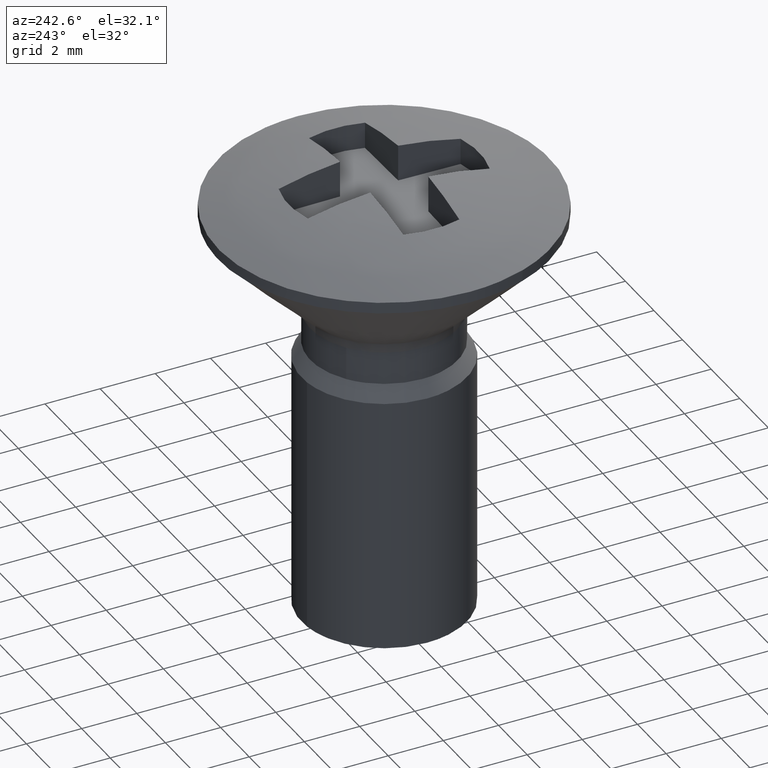
[diagram: clean part render]
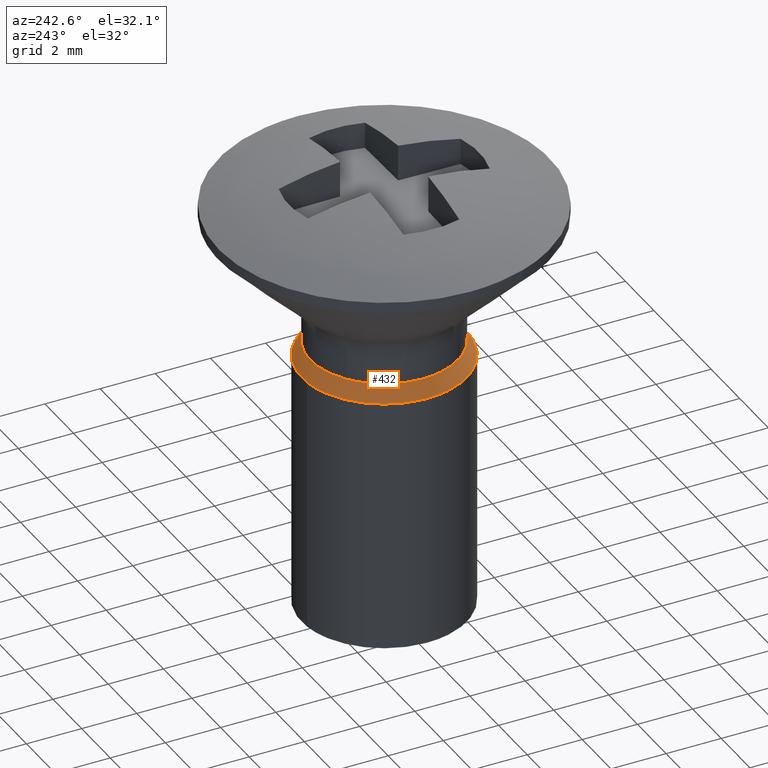
[diagram: same view with one face highlighted and labeled with its STEP entity id]
A machine part, auxiliary view. The second image highlights one B-rep face of the part: STEP entity #432.
In plain terms, the highlighted face is a freeform B-spline surface patch.
Its self-contained STEP definition (entity closure, byte-faithful):
#66=CARTESIAN_POINT('',(-1.555346476061306,2.176355287953540,-5.162100000000004));
#67=VERTEX_POINT('',#66);
#68=CARTESIAN_POINT('',(2.504184073225205,0.940578081505814,-5.162100000001266));
#69=VERTEX_POINT('',#68);
#70=CARTESIAN_POINT('',(-1.555346476061305,2.176355287953539,-5.162100000000004));
#71=CARTESIAN_POINT('',(-0.857605765041905,2.675000000000000,-5.162100000000002));
#72=CARTESIAN_POINT('',(0.0,2.675000000000000,-5.162100000000001));
#73=CARTESIAN_POINT('',(1.852730668469773,2.674999999999999,-5.162100000000001));
#74=CARTESIAN_POINT('',(2.504184073225205,0.940578081505814,-5.162100000001266));
#82=(BOUNDED_CURVE()B_SPLINE_CURVE(2,(#70,#71,#72,#73,#74),.UNSPECIFIED.,.F.,.U.)B_SPLINE_CURVE_WITH_KNOTS((3,2,3),(0.149938541959270,0.250000000000000,0.440284170897888),.UNSPECIFIED.)CURVE()GEOMETRIC_REPRESENTATION_ITEM()RATIONAL_B_SPLINE_CURVE((0.859382489341245,0.882770709901133,1.0,0.777068226785874,0.893499554634516))REPRESENTATION_ITEM(''));
#83=EDGE_CURVE('',#67,#69,#82,.T.);
#180=CARTESIAN_POINT('',(-2.675000000000000,0.0,-5.162100000000001));
#181=VERTEX_POINT('',#180);
#182=CARTESIAN_POINT('',(-2.675000000000000,0.0,-5.162100000000001));
#183=CARTESIAN_POINT('',(-2.675000000000000,1.376187976202104,-5.162100000000000));
#184=CARTESIAN_POINT('',(-1.555346476061305,2.176355287953539,-5.162100000000004));
#192=(BOUNDED_CURVE()B_SPLINE_CURVE(2,(#182,#183,#184),.UNSPECIFIED.,.F.,.U.)B_SPLINE_CURVE_WITH_KNOTS((3,3),(0.0,0.149938541959270),.UNSPECIFIED.)CURVE()GEOMETRIC_REPRESENTATION_ITEM()RATIONAL_B_SPLINE_CURVE((1.0,0.824336071285415,0.859382489341245))REPRESENTATION_ITEM(''));
#193=EDGE_CURVE('',#181,#67,#192,.T.);
#195=CARTESIAN_POINT('',(0.163304843257936,-2.670010585778587,-5.162100000000384));
#196=VERTEX_POINT('',#195);
#197=CARTESIAN_POINT('',(0.163304843257936,-2.670010585778587,-5.162100000000384));
#198=CARTESIAN_POINT('',(0.081728641825911,-2.674999999999999,-5.162100000000001));
#199=CARTESIAN_POINT('',(0.0,-2.675000000000000,-5.162100000000001));
#200=CARTESIAN_POINT('',(-2.675000000000000,-2.675000000000000,-5.162100000000002));
#201=CARTESIAN_POINT('',(-2.675000000000000,0.0,-5.162100000000001));
#209=(BOUNDED_CURVE()B_SPLINE_CURVE(2,(#197,#198,#199,#200,#201),.UNSPECIFIED.,.F.,.U.)B_SPLINE_CURVE_WITH_KNOTS((3,2,3),(0.739332962241687,0.750000000000000,1.0),.UNSPECIFIED.)CURVE()GEOMETRIC_REPRESENTATION_ITEM()RATIONAL_B_SPLINE_CURVE((0.976072041672598,0.987502787903052,1.0,0.707106781186548,1.0))REPRESENTATION_ITEM(''));
#210=EDGE_CURVE('',#196,#181,#209,.T.);
#308=CARTESIAN_POINT('',(2.808430736327644,1.054853923182961,-5.725000000001246));
#309=VERTEX_POINT('',#308);
#325=CARTESIAN_POINT('',(2.504184073225205,0.940578081505814,-5.162100000001266));
#326=CARTESIAN_POINT('',(2.808430736327644,1.054853923182961,-5.725000000001246));
#327=QUASI_UNIFORM_CURVE('',1,(#325,#326),.UNSPECIFIED.,.F.,.U.);
#328=EDGE_CURVE('',#69,#309,#327,.T.);
#333=CARTESIAN_POINT('',(0.183143241077346,-2.994404538160465,-5.724999995645167));
#334=VERTEX_POINT('',#333);
#335=CARTESIAN_POINT('',(0.163304843257936,-2.670010585778587,-5.162100000000384));
#336=CARTESIAN_POINT('',(0.183143241077346,-2.994404538160465,-5.724999995645167));
#337=QUASI_UNIFORM_CURVE('',1,(#335,#336),.UNSPECIFIED.,.F.,.U.);
#338=EDGE_CURVE('',#196,#334,#337,.T.);
#356=CARTESIAN_POINT('',(0.162808823872022,-2.661900740541326,-5.148027500000000));
#357=CARTESIAN_POINT('',(-2.499091916669304,-2.824709564413349,-5.148027499999999));
#358=CARTESIAN_POINT('',(-2.661900740541326,-0.162808823872022,-5.148027500000000));
#359=CARTESIAN_POINT('',(-2.824709564413349,2.499091916669304,-5.148027499999999));
#360=CARTESIAN_POINT('',(-0.162808823872022,2.661900740541326,-5.148027500000000));
#361=CARTESIAN_POINT('',(1.803793128471057,2.782183268739686,-5.148027500000000));
#362=CARTESIAN_POINT('',(2.496577906650007,0.937721185455527,-5.148027500000000));
#363=CARTESIAN_POINT('',(0.183654038472885,-3.002716986633708,-5.739424312500001));
#364=CARTESIAN_POINT('',(-2.819062948160823,-3.186371025106593,-5.739424312500001));
#365=CARTESIAN_POINT('',(-3.002716986633708,-0.183654038472885,-5.739424312500001));
#366=CARTESIAN_POINT('',(-3.186371025106593,2.819062948160823,-5.739424312500001));
#367=CARTESIAN_POINT('',(-0.183654038472885,3.002716986633708,-5.739424312500001));
#368=CARTESIAN_POINT('',(2.034741635832650,3.138399878604734,-5.739424312500001));
#369=CARTESIAN_POINT('',(2.816227057071971,1.057782241617696,-5.739424312500001));
#377=(BOUNDED_SURFACE()B_SPLINE_SURFACE(2,1,((#356,#363),(#357,#364),(#358,#365),(#359,#366),(#360,#367),(#361,#368),(#362,#369)),.UNSPECIFIED.,.F.,.F.,.U.)B_SPLINE_SURFACE_WITH_KNOTS((3,2,2,3),(2,2),(0.0,4.984361237773694,9.968722475547388,13.956211465766341),(0.0,1.0),.UNSPECIFIED.)GEOMETRIC_REPRESENTATION_ITEM()RATIONAL_B_SPLINE_SURFACE(((1.0,1.0),(0.707106781186548,0.707106781186548),(1.0,1.0),(0.707106781186548,0.707106781186548),(1.0,1.0),(0.765685424949238,0.765685424949238),(0.906274169979695,0.906274169979695)))REPRESENTATION_ITEM('')SURFACE());
#378=CARTESIAN_POINT('',(-0.354100393105621,2.979028853770474,-5.725000000000005));
#379=VERTEX_POINT('',#378);
#380=CARTESIAN_POINT('',(-0.354100393105621,2.979028853770474,-5.725000000000005));
#381=CARTESIAN_POINT('',(-0.177671191308454,3.0,-5.725000000000000));
#382=CARTESIAN_POINT('',(0.0,3.0,-5.725000000000000));
#383=CARTESIAN_POINT('',(2.077828787070626,3.0,-5.724999999999999));
#384=CARTESIAN_POINT('',(2.808430736327644,1.054853923182961,-5.725000000001246));
#392=(BOUNDED_CURVE()B_SPLINE_CURVE(2,(#380,#381,#382,#383,#384),.UNSPECIFIED.,.F.,.U.)B_SPLINE_CURVE_WITH_KNOTS((3,2,3),(0.229562604613297,0.250000000000000,0.440284170898010),.UNSPECIFIED.)CURVE()GEOMETRIC_REPRESENTATION_ITEM()RATIONAL_B_SPLINE_CURVE((0.956027011144811,0.976056101924101,1.0,0.777068226785731,0.893499554634666))REPRESENTATION_ITEM(''));
#393=EDGE_CURVE('',#379,#309,#392,.T.);
#394=ORIENTED_EDGE('',*,*,#393,.F.);
#395=CARTESIAN_POINT('',(-3.0,0.0,-5.725000000000000));
#396=VERTEX_POINT('',#395);
#397=CARTESIAN_POINT('',(-3.0,0.0,-5.725000000000000));
#398=CARTESIAN_POINT('',(-3.000000000000000,2.664525659304678,-5.725000000000000));
#399=CARTESIAN_POINT('',(-0.354100393105621,2.979028853770474,-5.725000000000005));
#407=(BOUNDED_CURVE()B_SPLINE_CURVE(2,(#397,#398,#399),.UNSPECIFIED.,.F.,.U.)B_SPLINE_CURVE_WITH_KNOTS((3,3),(0.0,0.229562604613297),.UNSPECIFIED.)CURVE()GEOMETRIC_REPRESENTATION_ITEM()RATIONAL_B_SPLINE_CURVE((1.0,0.731050679262446,0.956027011144811))REPRESENTATION_ITEM(''));
#408=EDGE_CURVE('',#396,#379,#407,.T.);
#409=ORIENTED_EDGE('',*,*,#408,.F.);
#410=CARTESIAN_POINT('',(0.183143241077346,-2.994404538160464,-5.724999995645168));
#411=CARTESIAN_POINT('',(0.091657097876011,-3.000000000000000,-5.725000000000000));
#412=CARTESIAN_POINT('',(0.0,-3.0,-5.725000000000000));
#413=CARTESIAN_POINT('',(-3.0,-3.0,-5.724999999999999));
#414=CARTESIAN_POINT('',(-3.0,0.0,-5.725000000000000));
#422=(BOUNDED_CURVE()B_SPLINE_CURVE(2,(#410,#411,#412,#413,#414),.UNSPECIFIED.,.F.,.U.)B_SPLINE_CURVE_WITH_KNOTS((3,2,3),(0.739333099233568,0.750000000000000,1.0),.UNSPECIFIED.)CURVE()GEOMETRIC_REPRESENTATION_ITEM()RATIONAL_B_SPLINE_CURVE((0.976072335272453,0.987502948399024,1.0,0.707106781186548,1.0))REPRESENTATION_ITEM(''));
#423=EDGE_CURVE('',#334,#396,#422,.T.);
#424=ORIENTED_EDGE('',*,*,#423,.F.);
#425=ORIENTED_EDGE('',*,*,#338,.F.);
#426=ORIENTED_EDGE('',*,*,#210,.T.);
#427=ORIENTED_EDGE('',*,*,#193,.T.);
#428=ORIENTED_EDGE('',*,*,#83,.T.);
#429=ORIENTED_EDGE('',*,*,#328,.T.);
#430=EDGE_LOOP('',(#394,#409,#424,#425,#426,#427,#428,#429));
#431=FACE_OUTER_BOUND('',#430,.T.);
#432=ADVANCED_FACE('',(#431),#377,.T.);